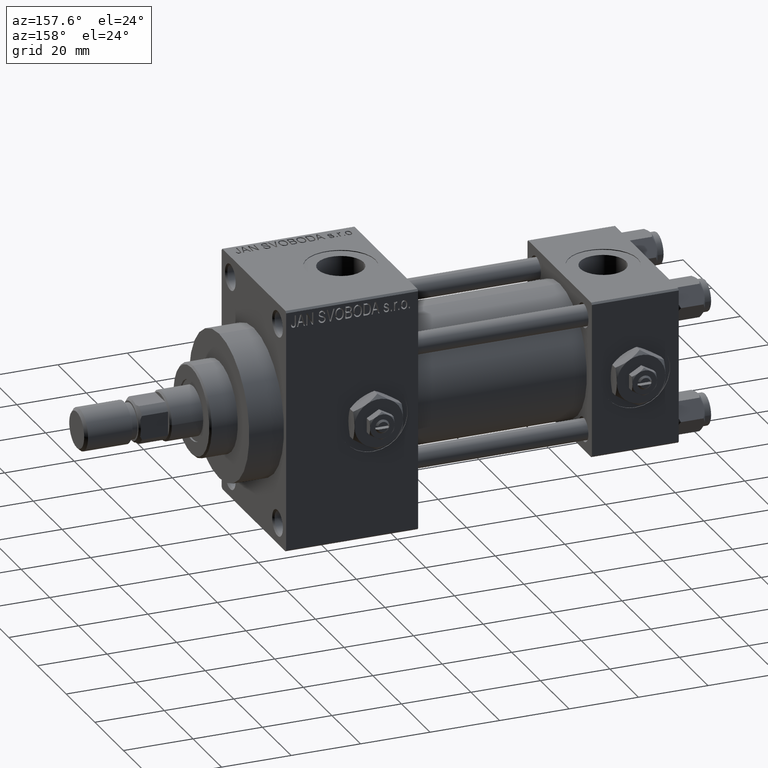
[diagram: clean part render]
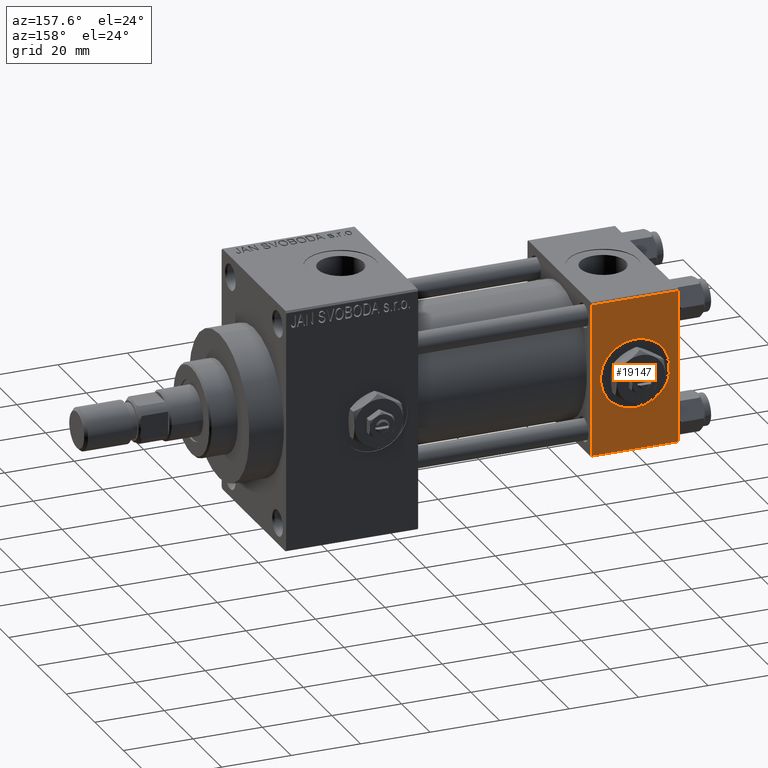
[diagram: same view with one face highlighted and labeled with its STEP entity id]
A machine part, auxiliary view. The second image highlights one B-rep face of the part: STEP entity #19147.
In plain terms, the highlighted planar face has unit normal (0, 1, 0).
Its self-contained STEP definition (entity closure, byte-faithful):
#613 = CARTESIAN_POINT ( 'NONE',  ( 25.00000000000000000, 22.50000000000000000, 22.50000000000000355 ) ) ;
#848 = FACE_OUTER_BOUND ( 'NONE', #15174, .T. ) ;
#2590 = VERTEX_POINT ( 'NONE', #49000 ) ;
#2801 = ORIENTED_EDGE ( 'NONE', *, *, #33684, .F. ) ;
#3408 = DIRECTION ( 'NONE',  ( 0.000000000000000000, 0.000000000000000000, -1.000000000000000000 ) ) ;
#3578 = ORIENTED_EDGE ( 'NONE', *, *, #23316, .F. ) ;
#4342 = AXIS2_PLACEMENT_3D ( 'NONE', #21831, #17332, #21581 ) ;
#5608 = EDGE_CURVE ( 'NONE', #49102, #38715, #29263, .T. ) ;
#6159 = VERTEX_POINT ( 'NONE', #13855 ) ;
#8110 = VECTOR ( 'NONE', #3408, 1000.000000000000000 ) ;
#10481 = CARTESIAN_POINT ( 'NONE',  ( 25.00000000000000000, 22.50000000000000000, 21.99999999999999645 ) ) ;
#10919 = ORIENTED_EDGE ( 'NONE', *, *, #25172, .F. ) ;
#10973 = LINE ( 'NONE', #10481, #35830 ) ;
#11671 = VERTEX_POINT ( 'NONE', #27625 ) ;
#11973 = AXIS2_PLACEMENT_3D ( 'NONE', #30462, #31451, #42239 ) ;
#12955 = VECTOR ( 'NONE', #28988, 1000.000000000000000 ) ;
#13438 = EDGE_LOOP ( 'NONE', ( #2801, #10919 ) ) ;
#13855 = CARTESIAN_POINT ( 'NONE',  ( 12.50000000000000000, 22.50000000000000000, 9.999999999999996447 ) ) ;
#15174 = EDGE_LOOP ( 'NONE', ( #45043, #18426, #3578, #20688 ) ) ;
#16154 = PLANE ( 'NONE',  #11973 ) ;
#17332 = DIRECTION ( 'NONE',  ( 0.000000000000000000, 1.000000000000000000, 0.000000000000000000 ) ) ;
#18426 = ORIENTED_EDGE ( 'NONE', *, *, #5608, .T. ) ;
#18957 = LINE ( 'NONE', #613, #8110 ) ;
#19147 = ADVANCED_FACE ( 'NONE', ( #23183, #848 ), #16154, .T. ) ;
#19774 = CARTESIAN_POINT ( 'NONE',  ( 12.50000000000000000, 22.50000000000000000, 0.000000000000000000 ) ) ;
#20688 = ORIENTED_EDGE ( 'NONE', *, *, #40795, .T. ) ;
#21179 = VECTOR ( 'NONE', #36757, 1000.000000000000000 ) ;
#21477 = CARTESIAN_POINT ( 'NONE',  ( 0.000000000000000000, 22.50000000000000000, 22.50000000000000355 ) ) ;
#21581 = DIRECTION ( 'NONE',  ( 0.000000000000000000, 0.000000000000000000, 1.000000000000000000 ) ) ;
#21831 = CARTESIAN_POINT ( 'NONE',  ( 12.50000000000000000, 22.50000000000000000, 0.000000000000000000 ) ) ;
#23183 = FACE_BOUND ( 'NONE', #13438, .T. ) ;
#23316 = EDGE_CURVE ( 'NONE', #31495, #38715, #36997, .T. ) ;
#23424 = EDGE_CURVE ( 'NONE', #11671, #49102, #18957, .T. ) ;
#23519 = DIRECTION ( 'NONE',  ( 0.000000000000000000, 1.000000000000000000, 0.000000000000000000 ) ) ;
#25172 = EDGE_CURVE ( 'NONE', #2590, #6159, #33021, .T. ) ;
#27390 = AXIS2_PLACEMENT_3D ( 'NONE', #19774, #23519, #31049 ) ;
#27625 = CARTESIAN_POINT ( 'NONE',  ( 25.00000000000000000, 22.50000000000000000, 21.99999999999999645 ) ) ;
#28988 = DIRECTION ( 'NONE',  ( 0.000000000000000000, 0.000000000000000000, -1.000000000000000000 ) ) ;
#29263 = LINE ( 'NONE', #32280, #21179 ) ;
#30462 = CARTESIAN_POINT ( 'NONE',  ( 25.00000000000000000, 22.50000000000000000, 22.50000000000000355 ) ) ;
#30675 = CARTESIAN_POINT ( 'NONE',  ( 0.000000000000000000, 22.50000000000000000, -21.99999999999996803 ) ) ;
#31024 = CARTESIAN_POINT ( 'NONE',  ( 25.00000000000000000, 22.50000000000000000, -21.99999999999996803 ) ) ;
#31049 = DIRECTION ( 'NONE',  ( 0.000000000000000000, 0.000000000000000000, 1.000000000000000000 ) ) ;
#31282 = CARTESIAN_POINT ( 'NONE',  ( 0.000000000000000000, 22.50000000000000000, 21.99999999999999645 ) ) ;
#31451 = DIRECTION ( 'NONE',  ( -0.000000000000000000, 1.000000000000000000, 0.000000000000000000 ) ) ;
#31495 = VERTEX_POINT ( 'NONE', #31282 ) ;
#32280 = CARTESIAN_POINT ( 'NONE',  ( 25.00000000000000000, 22.50000000000000000, -21.99999999999998224 ) ) ;
#33021 = CIRCLE ( 'NONE', #27390, 9.999999999999996447 ) ;
#33684 = EDGE_CURVE ( 'NONE', #6159, #2590, #46769, .T. ) ;
#35830 = VECTOR ( 'NONE', #37544, 1000.000000000000000 ) ;
#36757 = DIRECTION ( 'NONE',  ( -1.000000000000000000, 0.000000000000000000, 0.000000000000000000 ) ) ;
#36997 = LINE ( 'NONE', #21477, #12955 ) ;
#37544 = DIRECTION ( 'NONE',  ( 1.000000000000000000, 0.000000000000000000, 0.000000000000000000 ) ) ;
#38715 = VERTEX_POINT ( 'NONE', #30675 ) ;
#40795 = EDGE_CURVE ( 'NONE', #31495, #11671, #10973, .T. ) ;
#42239 = DIRECTION ( 'NONE',  ( 0.000000000000000000, -0.000000000000000000, 1.000000000000000000 ) ) ;
#45043 = ORIENTED_EDGE ( 'NONE', *, *, #23424, .T. ) ;
#46769 = CIRCLE ( 'NONE', #4342, 9.999999999999996447 ) ;
#49000 = CARTESIAN_POINT ( 'NONE',  ( 12.50000000000000178, 22.50000000000000000, -9.999999999999996447 ) ) ;
#49102 = VERTEX_POINT ( 'NONE', #31024 ) ;